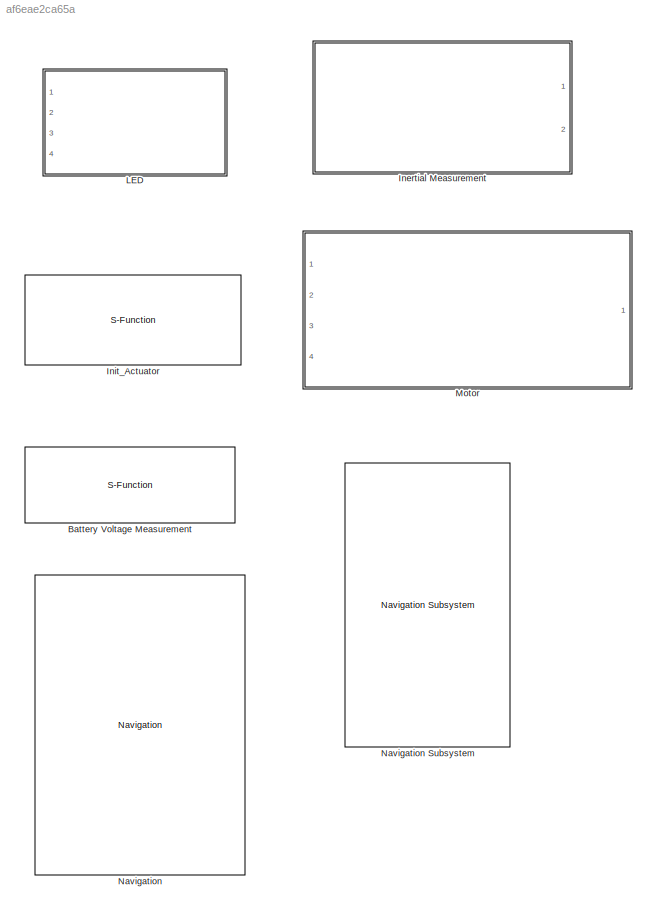
MODEL slx_af6eae2ca65a
KIND library
BLOCK [S-Function] Battery Voltage Measurement
  EnableBusSupport = off
  FunctionName = Battery_Sfcn_mex
  Parameters = SampleTime
  Ports = [0, 1]
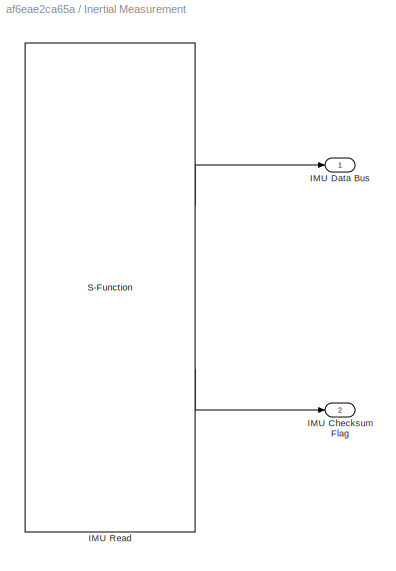
BLOCK [SubSystem] Inertial Measurement
  Ports = [0, 2]
  RequestExecContextInheritance = off
BLOCK [Outport] Inertial Measurement/IMU Checksum Flag
  IconDisplay = Port number
  Port = 2
BLOCK [Outport] Inertial Measurement/IMU Data Bus
  IconDisplay = Port number
BLOCK [S-Function] Inertial Measurement/IMU Read
  EnableBusSupport = off
  FunctionName = IMU_Sfcn_mex
  Parameters = SampleTime
  Ports = [0, 2]
BLOCK [S-Function] Init_Actuator
  EnableBusSupport = off
  FunctionName = Init_Actuator
  Ports = []
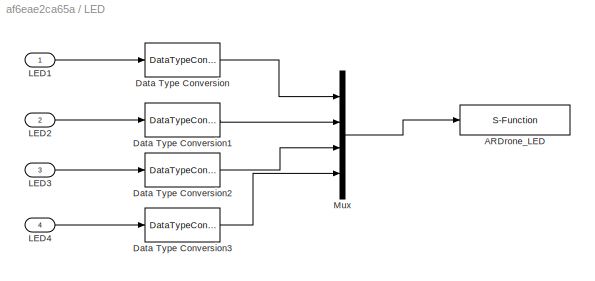
BLOCK [SubSystem] LED
  CopyFcn = %check_init_block
  DeleteFcn = %clear x
  DestroyFcn = %clear x
  Ports = [4]
  RequestExecContextInheritance = off
BLOCK [S-Function] LED/ARDrone_LED
  EnableBusSupport = off
  FunctionName = ARDrone_LED
  Ports = [1]
BLOCK [DataTypeConversion] LED/Data Type Conversion
  OutDataTypeStr = uint8
  RndMeth = Floor
  SaturateOnIntegerOverflow = off
BLOCK [DataTypeConversion] LED/Data Type Conversion1
  OutDataTypeStr = uint8
  RndMeth = Floor
  SaturateOnIntegerOverflow = off
BLOCK [DataTypeConversion] LED/Data Type Conversion2
  OutDataTypeStr = uint8
  RndMeth = Floor
  SaturateOnIntegerOverflow = off
BLOCK [DataTypeConversion] LED/Data Type Conversion3
  OutDataTypeStr = uint8
  RndMeth = Floor
  SaturateOnIntegerOverflow = off
BLOCK [Inport] LED/LED1
  IconDisplay = Port number
BLOCK [Inport] LED/LED2
  IconDisplay = Port number
  Port = 2
BLOCK [Inport] LED/LED3
  IconDisplay = Port number
  Port = 3
BLOCK [Inport] LED/LED4
  IconDisplay = Port number
  Port = 4
BLOCK [Mux] LED/Mux
  DisplayOption = bar
  Ports = [4, 1]
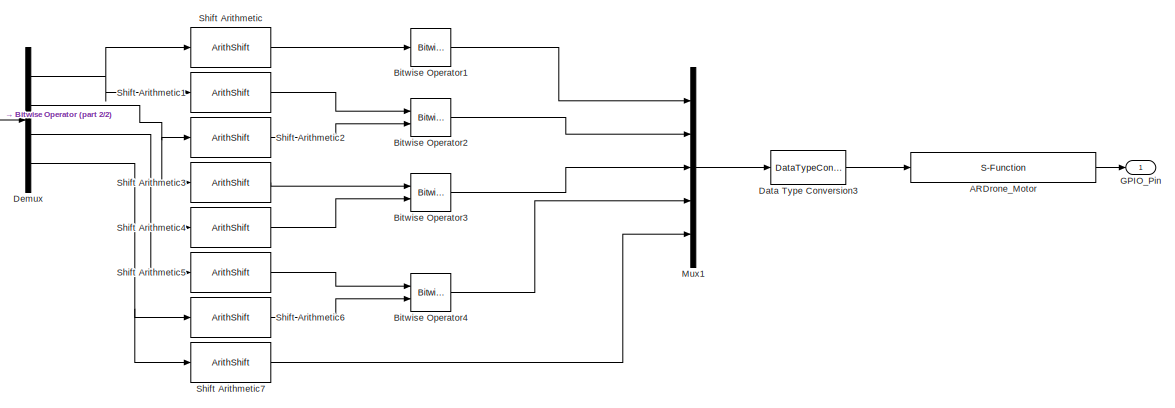
[diagram: Motor - part 1/2, right side, full height]
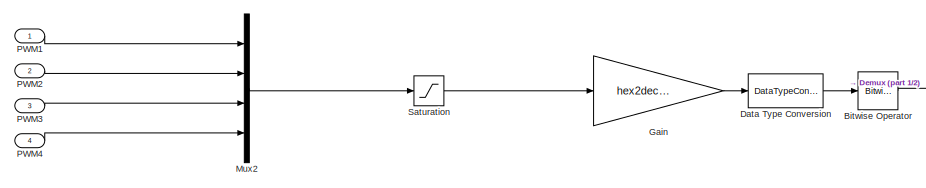
[diagram: Motor - part 2/2, middle left region]
BLOCK [SubSystem] Motor
  CopyFcn = %check_init_block
  Ports = [4, 1]
  RequestExecContextInheritance = off
BLOCK [S-Function] Motor/ARDrone_Motor
  EnableBusSupport = off
  FunctionName = ARDrone_Motor
  Ports = [1, 1]
BLOCK [Reference] Motor/Bitwise Operator  REF=simulink/Logic and Bit
Operations/Bitwise
Operator
  BitMask = '1FF'
  BitMaskRealWorld = Stored Integer
  NumInputPorts = 1
  Ports = [1, 1]
  SourceBlock = simulink/Logic and Bit\nOperations/Bitwise\nOperator
  SourceType = Bitwise Operator
  UseBitMask = on
  logicop = AND
BLOCK [Reference] Motor/Bitwise Operator1  REF=simulink/Logic and Bit
Operations/Bitwise
Operator
  BitMask = '20'
  BitMaskRealWorld = Stored Integer
  NumInputPorts = 1
  Ports = [1, 1]
  SourceBlock = simulink/Logic and Bit\nOperations/Bitwise\nOperator
  SourceType = Bitwise Operator
  UseBitMask = on
  logicop = OR
BLOCK [Reference] Motor/Bitwise Operator2  REF=simulink/Logic and Bit
Operations/Bitwise
Operator
  BitMask = '20'
  BitMaskRealWorld = Stored Integer
  NumInputPorts = 2
  Ports = [2, 1]
  SourceBlock = simulink/Logic and Bit\nOperations/Bitwise\nOperator
  SourceType = Bitwise Operator
  UseBitMask = off
  logicop = OR
BLOCK [Reference] Motor/Bitwise Operator3  REF=simulink/Logic and Bit
Operations/Bitwise
Operator
  BitMask = '20'
  BitMaskRealWorld = Stored Integer
  NumInputPorts = 2
  Ports = [2, 1]
  SourceBlock = simulink/Logic and Bit\nOperations/Bitwise\nOperator
  SourceType = Bitwise Operator
  UseBitMask = off
  logicop = OR
BLOCK [Reference] Motor/Bitwise Operator4  REF=simulink/Logic and Bit
Operations/Bitwise
Operator
  BitMask = '20'
  BitMaskRealWorld = Stored Integer
  NumInputPorts = 2
  Ports = [2, 1]
  SourceBlock = simulink/Logic and Bit\nOperations/Bitwise\nOperator
  SourceType = Bitwise Operator
  UseBitMask = off
  logicop = OR
BLOCK [DataTypeConversion] Motor/Data Type Conversion
  OutDataTypeStr = uint16
  RndMeth = Floor
  SaturateOnIntegerOverflow = off
BLOCK [DataTypeConversion] Motor/Data Type Conversion3
  OutDataTypeStr = uint8
  RndMeth = Floor
  SaturateOnIntegerOverflow = off
BLOCK [Demux] Motor/Demux
  DisplayOption = bar
  Ports = [1, 4]
BLOCK [Outport] Motor/GPIO_Pin
  IconDisplay = Port number
BLOCK [Gain] Motor/Gain
  Gain = hex2dec('1FF')/100
  OutDataTypeStr = Inherit: Inherit via internal rule
  ParamDataTypeStr = Inherit: Inherit via internal rule
  SaturateOnIntegerOverflow = off
BLOCK [Mux] Motor/Mux1
  DisplayOption = bar
  Inputs = 5
  Ports = [5, 1]
BLOCK [Mux] Motor/Mux2
  DisplayOption = bar
  Ports = [4, 1]
BLOCK [Inport] Motor/PWM1
  IconDisplay = Port number
BLOCK [Inport] Motor/PWM2
  IconDisplay = Port number
  Port = 2
BLOCK [Inport] Motor/PWM3
  IconDisplay = Port number
  Port = 3
BLOCK [Inport] Motor/PWM4
  IconDisplay = Port number
  Port = 4
BLOCK [Saturate] Motor/Saturation
  InputPortMap = u0
  LowerLimit = 0
  Ports = [1, 1]
  UpperLimit = 100
BLOCK [ArithShift] Motor/Shift Arithmetic
  BitShiftDirection = Right
  BitShiftNumber = 4
  InputPortMap = u0
  Ports = [1, 1]
BLOCK [ArithShift] Motor/Shift Arithmetic1
  BitShiftDirection = Left
  BitShiftNumber = 4
  InputPortMap = u0
  Ports = [1, 1]
BLOCK [ArithShift] Motor/Shift Arithmetic2
  BitShiftDirection = Right
  BitShiftNumber = 5
  InputPortMap = u0
  Ports = [1, 1]
BLOCK [ArithShift] Motor/Shift Arithmetic3
  BitShiftDirection = Left
  BitShiftNumber = 3
  InputPortMap = u0
  Ports = [1, 1]
BLOCK [ArithShift] Motor/Shift Arithmetic4
  BitShiftDirection = Right
  BitShiftNumber = 6
  InputPortMap = u0
  Ports = [1, 1]
BLOCK [ArithShift] Motor/Shift Arithmetic5
  BitShiftDirection = Left
  BitShiftNumber = 2
  InputPortMap = u0
  Ports = [1, 1]
BLOCK [ArithShift] Motor/Shift Arithmetic6
  BitShiftDirection = Right
  BitShiftNumber = 7
  InputPortMap = u0
  Ports = [1, 1]
BLOCK [ArithShift] Motor/Shift Arithmetic7
  BitShiftDirection = Left
  BitShiftNumber = 1
  InputPortMap = u0
  Ports = [1, 1]
BLOCK [Reference] Navigation  REF=Navigation_KF_Lib/Navigation
  Ports = [3, 2]
  SourceBlock = Navigation_KF_Lib/Navigation
BLOCK [Reference] Navigation Subsystem  REF=Navigation_Lib/Navigation Subsystem
  ACCEL_OFFSET_X = 0
  ACCEL_OFFSET_Y = 0
  ACCEL_OFFSET_Z = 0
  D_YAW_CORRECT = 0
  I_GAIN_ROLLPITCH = -0.01
  PI_YAW_CORRECT = [-0.9 -0.0001]
  P_GAIN_ROLLPITCH = -2
  Ports = [2, 9]
  SourceBlock = Navigation_Lib/Navigation Subsystem
  TempProcessVariant = 1
LINE Inertial Measurement/IMU Read:1 -> Inertial Measurement/IMU Data Bus:1
LINE Inertial Measurement/IMU Read:2 -> Inertial Measurement/IMU Checksum Flag:1
LINE LED/Data Type Conversion1:1 -> LED/Mux:2
LINE LED/Data Type Conversion2:1 -> LED/Mux:3
LINE LED/Data Type Conversion3:1 -> LED/Mux:4
LINE LED/Data Type Conversion:1 -> LED/Mux:1
LINE LED/LED1:1 -> LED/Data Type Conversion:1
LINE LED/LED2:1 -> LED/Data Type Conversion1:1
LINE LED/LED3:1 -> LED/Data Type Conversion2:1
LINE LED/LED4:1 -> LED/Data Type Conversion3:1
LINE LED/Mux:1 -> LED/ARDrone_LED:1
LINE Motor/ARDrone_Motor:1 -> Motor/GPIO_Pin:1
LINE Motor/Bitwise Operator1:1 -> Motor/Mux1:1
LINE Motor/Bitwise Operator2:1 -> Motor/Mux1:2
LINE Motor/Bitwise Operator3:1 -> Motor/Mux1:3
LINE Motor/Bitwise Operator4:1 -> Motor/Mux1:4
LINE Motor/Bitwise Operator:1 -> Motor/Demux:1
LINE Motor/Data Type Conversion3:1 -> Motor/ARDrone_Motor:1
LINE Motor/Data Type Conversion:1 -> Motor/Bitwise Operator:1
NET Motor/Demux:1 -> Motor/Shift Arithmetic1:1, Motor/Shift Arithmetic:1
NET Motor/Demux:2 -> Motor/Shift Arithmetic2:1, Motor/Shift Arithmetic3:1
NET Motor/Demux:3 -> Motor/Shift Arithmetic4:1, Motor/Shift Arithmetic5:1
NET Motor/Demux:4 -> Motor/Shift Arithmetic6:1, Motor/Shift Arithmetic7:1
LINE Motor/Gain:1 -> Motor/Data Type Conversion:1
LINE Motor/Mux1:1 -> Motor/Data Type Conversion3:1
LINE Motor/Mux2:1 -> Motor/Saturation:1
LINE Motor/PWM1:1 -> Motor/Mux2:1
LINE Motor/PWM2:1 -> Motor/Mux2:2
LINE Motor/PWM3:1 -> Motor/Mux2:3
LINE Motor/PWM4:1 -> Motor/Mux2:4
LINE Motor/Saturation:1 -> Motor/Gain:1
LINE Motor/Shift Arithmetic1:1 -> Motor/Bitwise Operator2:1
LINE Motor/Shift Arithmetic2:1 -> Motor/Bitwise Operator2:2
LINE Motor/Shift Arithmetic3:1 -> Motor/Bitwise Operator3:1
LINE Motor/Shift Arithmetic4:1 -> Motor/Bitwise Operator3:2
LINE Motor/Shift Arithmetic5:1 -> Motor/Bitwise Operator4:1
LINE Motor/Shift Arithmetic6:1 -> Motor/Bitwise Operator4:2
LINE Motor/Shift Arithmetic7:1 -> Motor/Mux1:5
LINE Motor/Shift Arithmetic:1 -> Motor/Bitwise Operator1:1
note: NET lines group one-source signal fan-out (src -> all destinations, sorted); 1:1 wires keep LINE
